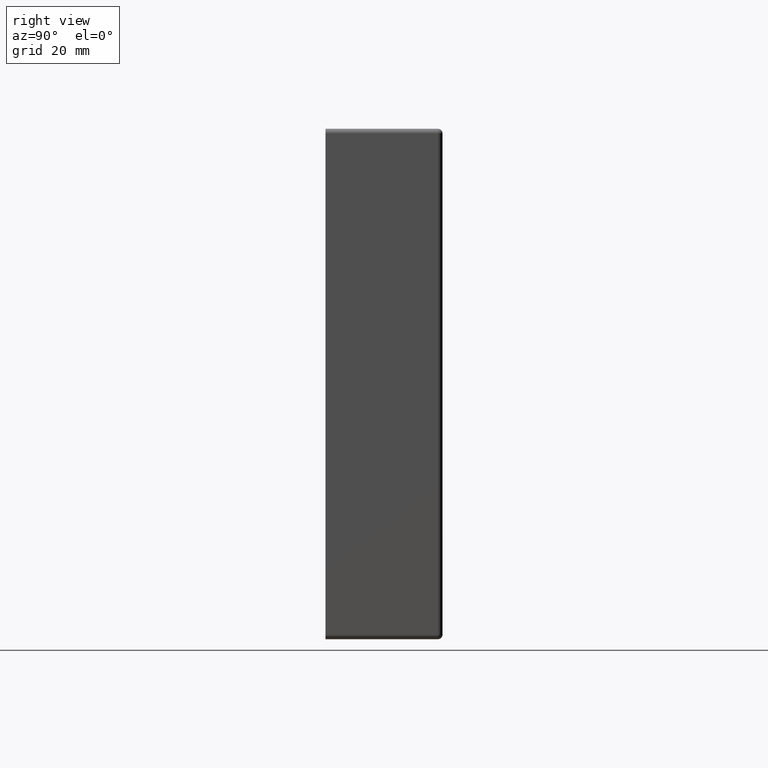
[diagram: clean part render]
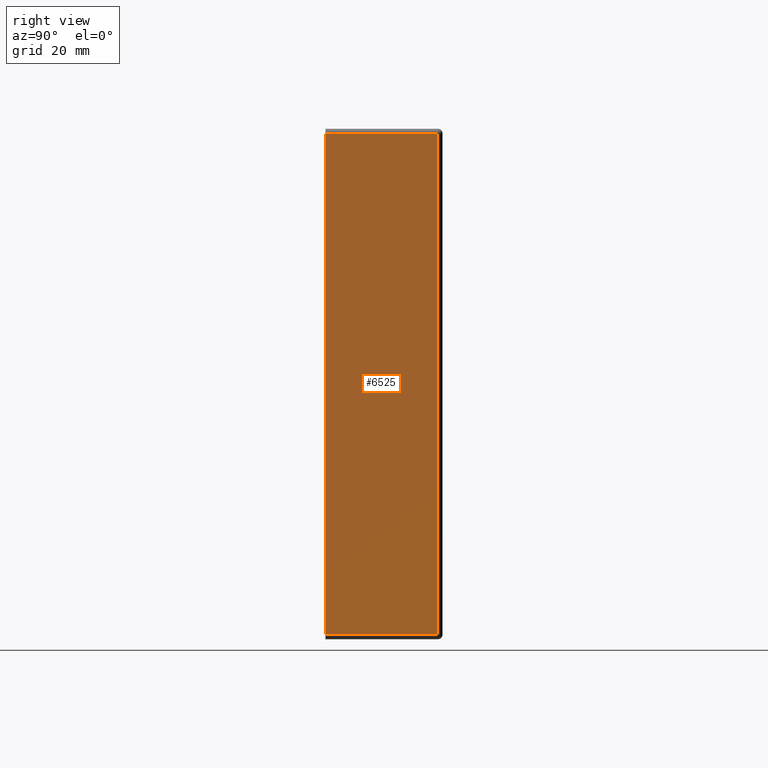
[diagram: same view with one face highlighted and labeled with its STEP entity id]
A machine part, right view. The second image highlights one B-rep face of the part: STEP entity #6525.
In plain terms, the highlighted planar face has unit normal (-1, 0, 0).
Its self-contained STEP definition (entity closure, byte-faithful):
#74 = ORIENTED_EDGE ( 'NONE', *, *, #9143, .T. ) ;
#415 = EDGE_CURVE ( 'NONE', #10741, #1489, #12961, .T. ) ;
#1348 = ORIENTED_EDGE ( 'NONE', *, *, #415, .T. ) ;
#1433 = VECTOR ( 'NONE', #6435, 1000.000000000000000 ) ;
#1489 = VERTEX_POINT ( 'NONE', #12700 ) ;
#1686 = FACE_OUTER_BOUND ( 'NONE', #10495, .T. ) ;
#1755 = VECTOR ( 'NONE', #3261, 1000.000000000000000 ) ;
#1871 = AXIS2_PLACEMENT_3D ( 'NONE', #10564, #11922, #6589 ) ;
#2519 = PLANE ( 'NONE',  #1871 ) ;
#3261 = DIRECTION ( 'NONE',  ( 1.909787313001989722E-16, -0.000000000000000000, 1.000000000000000000 ) ) ;
#3370 = EDGE_CURVE ( 'NONE', #5903, #14940, #8477, .T. ) ;
#4505 = CARTESIAN_POINT ( 'NONE',  ( 54.50000000000000711, 0.000000000000000000, 53.49999999999999289 ) ) ;
#4512 = EDGE_CURVE ( 'NONE', #1489, #5903, #6767, .T. ) ;
#5903 = VERTEX_POINT ( 'NONE', #4505 ) ;
#6435 = DIRECTION ( 'NONE',  ( -0.000000000000000000, 1.000000000000000000, -0.000000000000000000 ) ) ;
#6525 = ADVANCED_FACE ( 'NONE', ( #1686 ), #2519, .F. ) ;
#6589 = DIRECTION ( 'NONE',  ( 1.909787313001989722E-16, 0.000000000000000000, 1.000000000000000000 ) ) ;
#6767 = LINE ( 'NONE', #11058, #12477 ) ;
#7468 = DIRECTION ( 'NONE',  ( -1.909787313001989475E-16, -0.000000000000000000, -1.000000000000000000 ) ) ;
#7604 = CARTESIAN_POINT ( 'NONE',  ( 54.49999999999998579, 0.000000000000000000, -53.50000000000000711 ) ) ;
#8477 = LINE ( 'NONE', #13849, #10609 ) ;
#9143 = EDGE_CURVE ( 'NONE', #14940, #10741, #10111, .T. ) ;
#10111 = LINE ( 'NONE', #14560, #1433 ) ;
#10495 = EDGE_LOOP ( 'NONE', ( #13059, #74, #1348, #11191 ) ) ;
#10564 = CARTESIAN_POINT ( 'NONE',  ( 54.49999999999998579, 25.00000000000000000, -54.50000000000000711 ) ) ;
#10609 = VECTOR ( 'NONE', #7468, 1000.000000000000000 ) ;
#10741 = VERTEX_POINT ( 'NONE', #13936 ) ;
#11058 = CARTESIAN_POINT ( 'NONE',  ( 54.50000000000000711, 25.00000000000000000, 53.49999999999999289 ) ) ;
#11177 = DIRECTION ( 'NONE',  ( 0.000000000000000000, -1.000000000000000000, 0.000000000000000000 ) ) ;
#11191 = ORIENTED_EDGE ( 'NONE', *, *, #4512, .T. ) ;
#11922 = DIRECTION ( 'NONE',  ( -1.000000000000000000, 0.000000000000000000, 1.909787313001989722E-16 ) ) ;
#12477 = VECTOR ( 'NONE', #11177, 1000.000000000000000 ) ;
#12700 = CARTESIAN_POINT ( 'NONE',  ( 54.50000000000000711, 24.00000000000000000, 53.49999999999999289 ) ) ;
#12961 = LINE ( 'NONE', #16362, #1755 ) ;
#13059 = ORIENTED_EDGE ( 'NONE', *, *, #3370, .T. ) ;
#13849 = CARTESIAN_POINT ( 'NONE',  ( 54.49999999999998579, 0.000000000000000000, -54.50000000000000711 ) ) ;
#13936 = CARTESIAN_POINT ( 'NONE',  ( 54.49999999999998579, 24.00000000000000000, -53.50000000000000711 ) ) ;
#14560 = CARTESIAN_POINT ( 'NONE',  ( 54.49999999999998579, 25.00000000000000000, -53.50000000000000711 ) ) ;
#14940 = VERTEX_POINT ( 'NONE', #7604 ) ;
#16362 = CARTESIAN_POINT ( 'NONE',  ( 54.50000000000000711, 24.00000000000000000, 54.49999999999999289 ) ) ;